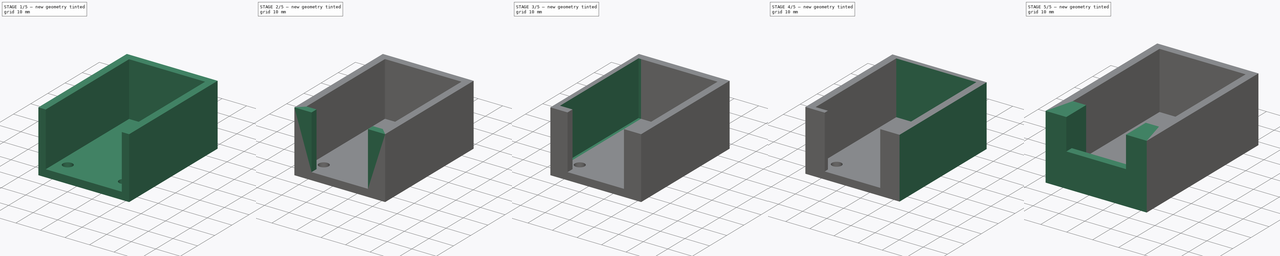
[diagram: build sequence overview — one tinted view per stage of 5, left to right]
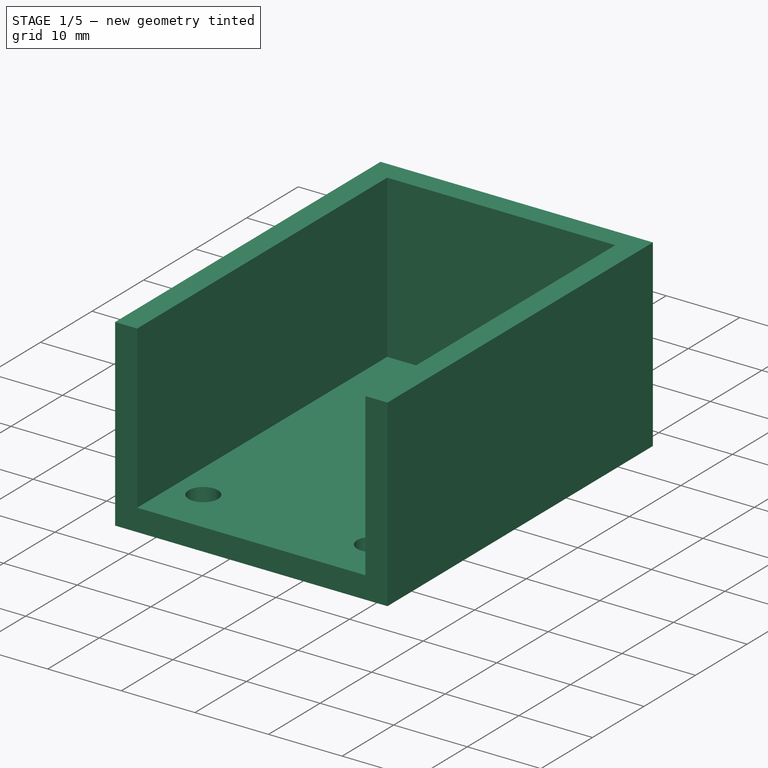
[diagram: stage 1 of 5 — iso view after this stage's code; geometry added in this stage tinted green]
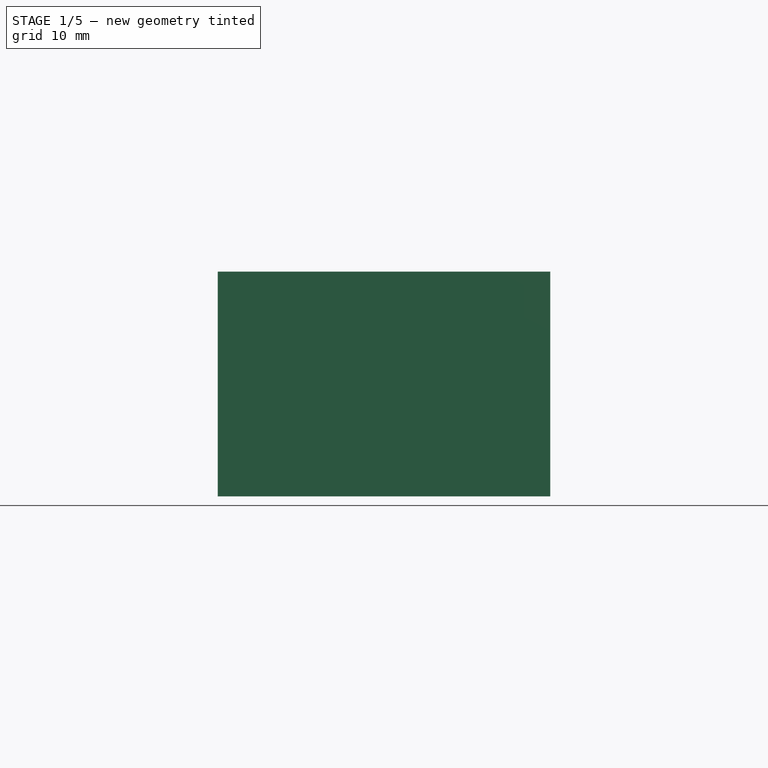
[diagram: stage 1 of 5 — front view after this stage's code; geometry added in this stage tinted green]
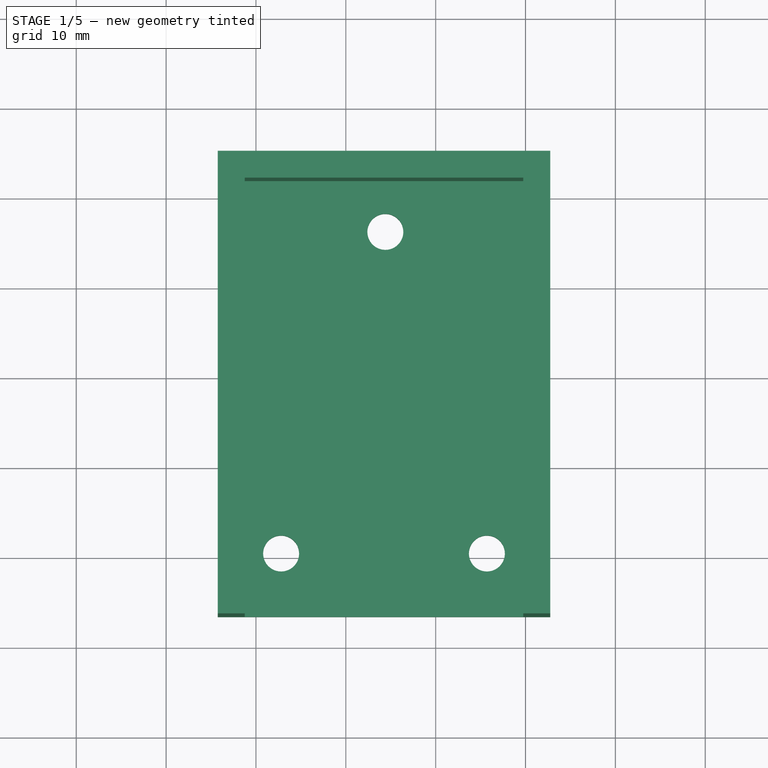
[diagram: stage 1 of 5 — top view after this stage's code; geometry added in this stage tinted green]
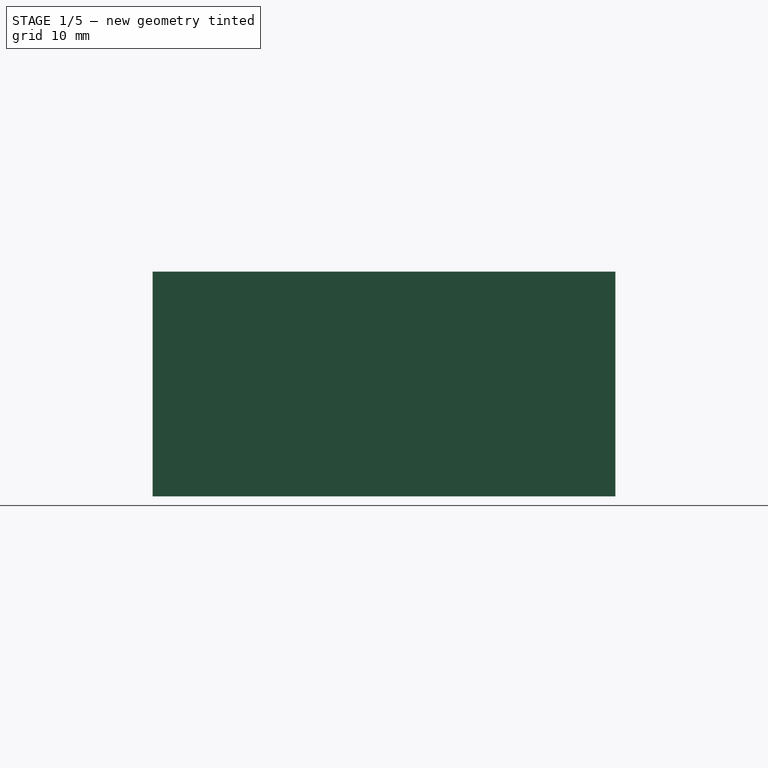
[diagram: stage 1 of 5 — right view after this stage's code; geometry added in this stage tinted green]
FCSTD DOCUMENT  (FreeCAD 0.18.4R)
Label: 12v_stepper_case
License: All rights reserved
LicenseURL: http://en.wikipedia.org/wiki/All_rights_reserved
objects: PartDesign::Pocket×18, App::MeasureDistance×10, PartDesign::Pad×9, Sketcher::SketchObject×7, PartDesign::Body×1
note: 62 computed .brp shape members not serialized (recipe doc carries the construction recipe); baked Part::Feature solids carry a one-line shape summary decoded from their .brp

FEATURE [Sketcher::SketchObject] Sketch
  MapMode = 5
  Support = -> [XY_Plane]
  sketch-geometry (4):
    g0: LineSegment StartX=-34.2498 StartY=24.9311 StartZ=0 EndX=2.75016 EndY=24.9311 EndZ=0
    g1: LineSegment StartX=2.75016 StartY=24.9311 StartZ=0 EndX=2.75016 EndY=-26.5689 EndZ=0
    g2: LineSegment StartX=2.75016 StartY=-26.5689 StartZ=0 EndX=-34.2498 EndY=-26.5689 EndZ=0
    g3: LineSegment StartX=-34.2498 StartY=-26.5689 StartZ=0 EndX=-34.2498 EndY=24.9311 EndZ=0
  constraints (10):
    c: Coincident(g0,g1)
    c: Coincident(g1,g2)
    c: Coincident(g2,g3)
    c: Coincident(g3,g0)
    c: Horizontal(g0)
    c: Horizontal(g2)
    c: Vertical(g1)
    c: Vertical(g3)
    c: DistanceX(g0,g0) = 37
    c: DistanceY(g1,g1) = 51.5
FEATURE [PartDesign::Pad] Pad
  Length = 25
  Length2 = 100
  Profile = -> Sketch
  Type = 0
FEATURE [Sketcher::SketchObject] Sketch001
  ExternalGeometry = -> [Pad]
  MapMode = 5
  Placement = pos=(0,0,25) rot=(0,0,1;0rad)
  Support = -> [Pad]
  sketch-geometry (4):
    g0: LineSegment StartX=-31.2498 StartY=21.9311 StartZ=0 EndX=-0.249835 EndY=21.9311 EndZ=0
    g1: LineSegment StartX=-0.249835 StartY=21.9311 StartZ=0 EndX=-0.249835 EndY=-23.5689 EndZ=0
    g2: LineSegment StartX=-0.249835 StartY=-23.5689 StartZ=0 EndX=-31.2498 EndY=-23.5689 EndZ=0
    g3: LineSegment StartX=-31.2498 StartY=-23.5689 StartZ=0 EndX=-31.2498 EndY=21.9311 EndZ=0
  constraints (12):
    c: Coincident(g0,g1)
    c: Coincident(g1,g2)
    c: Coincident(g2,g3)
    c: Coincident(g3,g0)
    c: Horizontal(g0)
    c: Horizontal(g2)
    c: Vertical(g1)
    c: Vertical(g3)
    c: Distance(g0,g-3) = 3
    c: Distance(g0,g-4) = 3
    c: Distance(g0,g-5) = 3
    c: Distance(g2,g-6) = 3
FEATURE [PartDesign::Pocket] Pocket
  BaseFeature = -> Pad
  Length = 22
  Length2 = 100
  Profile = -> Sketch001
  Type = 0
FEATURE [Sketcher::SketchObject] Sketch002
  ExternalGeometry = -> [Pocket]
  MapMode = 5
  Placement = pos=(0,0,25) rot=(0,0,1;0rad)
  Support = -> [Pocket]
  sketch-geometry (4):
    g0: LineSegment StartX=-31.2498 StartY=-23.5689 StartZ=0 EndX=-0.249835 EndY=-23.5689 EndZ=0
    g1: LineSegment StartX=-0.249835 StartY=-23.5689 StartZ=0 EndX=-0.249835 EndY=-26.5689 EndZ=0
    g2: LineSegment StartX=-0.249835 StartY=-26.5689 StartZ=0 EndX=-31.2498 EndY=-26.5689 EndZ=0
    g3: LineSegment StartX=-31.2498 StartY=-26.5689 StartZ=0 EndX=-31.2498 EndY=-23.5689 EndZ=0
  constraints (11):
    c: Coincident(g0,g1)
    c: Coincident(g1,g2)
    c: Coincident(g2,g3)
    c: Coincident(g3,g0)
    c: Horizontal(g0)
    c: Horizontal(g2)
    c: Vertical(g1)
    c: Vertical(g3)
    c: Distance(g1) = 3
    c: Distance(g0,g-4) = 3
    c: Distance(g2,g-7) = 51.5
FEATURE [PartDesign::Pocket] Pocket001
  BaseFeature = -> Pocket
  Length = 22
  Length2 = 100
  Profile = -> Sketch002
  Refine = true
  Type = 0
FEATURE [Sketcher::SketchObject] Sketch003
  ExternalGeometry = -> [Pocket001]
  MapMode = 5
  Placement = pos=(0,0,3) rot=(0,0,1;0rad)
  Support = -> [Pocket001]
  sketch-geometry (3):
    g0: Circle CenterX=-15.5998 CenterY=16.2811 CenterZ=0 NormalX=0 NormalY=0 NormalZ=1 AngleXU=0 Radius=2
    g1: Circle CenterX=-27.1998 CenterY=-19.5189 CenterZ=0 NormalX=0 NormalY=0 NormalZ=1 AngleXU=0 Radius=2
    g2: Circle CenterX=-4.29984 CenterY=-19.5189 CenterZ=0 NormalX=0 NormalY=0 NormalZ=1 AngleXU=0 Radius=2
  constraints (9):
    c: Radius(g0) = 2
    c: Distance(g0,g-4) = 5.65
    c: Distance(g0,g-3) = 15.65
    c: Radius(g2) = 2
    c: Radius(g1) = 2
    c: Distance(g2,g-5) = 4.05
    c: Distance(g1,g-3) = 4.05
    c: Distance(g1,g-6) = 7.05
    c: Distance(g2,g-6) = 7.05
FEATURE [PartDesign::Pocket] Pocket002
  BaseFeature = -> Pocket001
  Length = 5
  Length2 = 100
  Profile = -> Sketch003
  Type = 0
FEATURE [Sketcher::SketchObject] Sketch004
  ExternalGeometry = -> [Pocket002]
  MapMode = 5
  Placement = pos=(0,0,0) rot=(1,0,0;3.14159rad)
  Support = -> [Pocket002]
  sketch-geometry (3):
    g0: Circle CenterX=-27.1998 CenterY=19.5189 CenterZ=0 NormalX=0 NormalY=0 NormalZ=1 AngleXU=0 Radius=3
    g1: Circle CenterX=-4.29979 CenterY=19.5184 CenterZ=0 NormalX=0 NormalY=0 NormalZ=1 AngleXU=0 Radius=3
    g2: Circle CenterX=-15.5998 CenterY=-16.2811 CenterZ=0 NormalX=0 NormalY=0 NormalZ=1 AngleXU=0 Radius=3
  constraints (3):
    c: Radius(g1) = 3
    c: Radius(g0) = 3
    c: Radius(g2) = 3
FEATURE [PartDesign::Pocket] Pocket003
  BaseFeature = -> Pocket002
  Length = 1
  Length2 = 100
  Profile = -> Sketch004
  Refine = true
  Type = 0
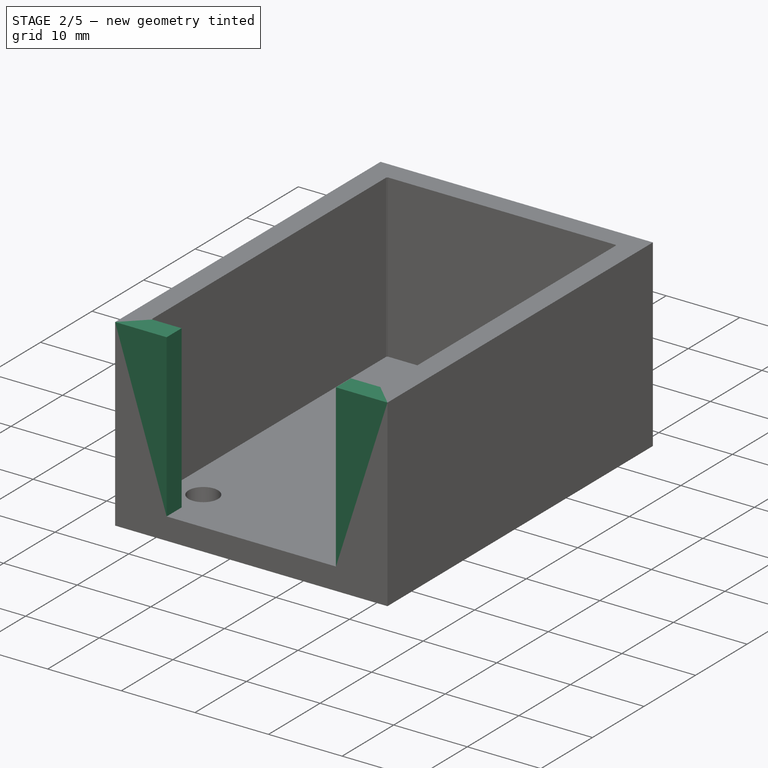
[diagram: stage 2 of 5 — iso view after this stage's code; geometry added in this stage tinted green]
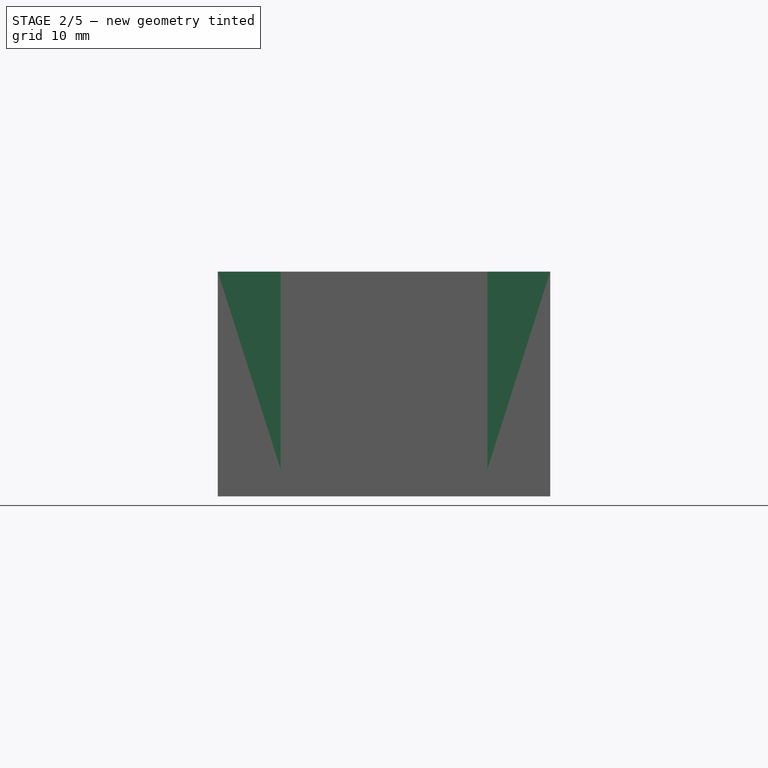
[diagram: stage 2 of 5 — front view after this stage's code; geometry added in this stage tinted green]
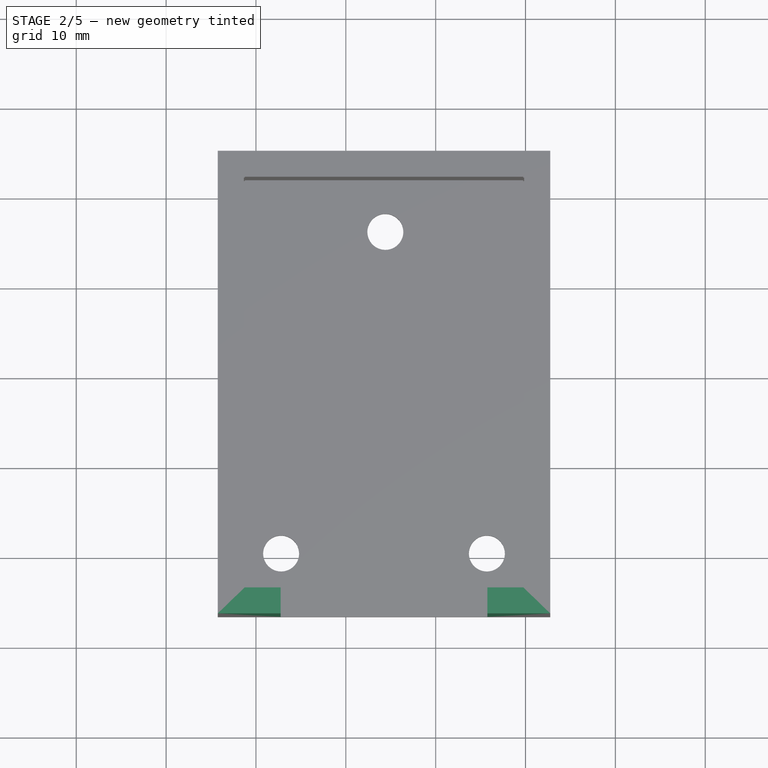
[diagram: stage 2 of 5 — top view after this stage's code; geometry added in this stage tinted green]
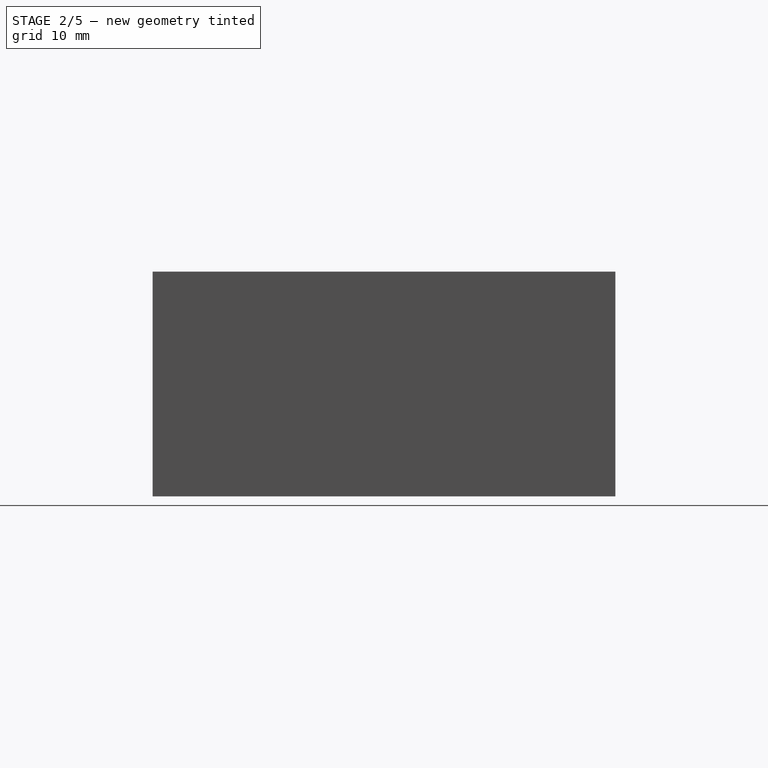
[diagram: stage 2 of 5 — right view after this stage's code; geometry added in this stage tinted green]
FEATURE [Sketcher::SketchObject] Sketch005
  ExternalGeometry = -> [Pocket003]
  MapMode = 5
  Placement = pos=(0,0,3) rot=(0,0,1;0rad)
  Support = -> [Pocket003]
  sketch-geometry (8):
    g0: LineSegment StartX=-31.2498 StartY=-23.5689 StartZ=0 EndX=-27.2498 EndY=-23.5689 EndZ=0
    g1: LineSegment StartX=-27.2498 StartY=-23.5689 StartZ=0 EndX=-27.2498 EndY=-26.5689 EndZ=0
    g2: LineSegment StartX=-27.2498 StartY=-26.5689 StartZ=0 EndX=-31.2498 EndY=-26.5689 EndZ=0
    g3: LineSegment StartX=-31.2498 StartY=-26.5689 StartZ=0 EndX=-31.2498 EndY=-23.5689 EndZ=0
    g4: LineSegment StartX=-0.249835 StartY=-23.5689 StartZ=0 EndX=-4.24984 EndY=-23.5689 EndZ=0
    g5: LineSegment StartX=-4.24984 StartY=-23.5689 StartZ=0 EndX=-4.24984 EndY=-26.5689 EndZ=0
    g6: LineSegment StartX=-4.24984 StartY=-26.5689 StartZ=0 EndX=-0.249835 EndY=-26.5689 EndZ=0
    g7: LineSegment StartX=-0.249835 StartY=-26.5689 StartZ=0 EndX=-0.249835 EndY=-23.5689 EndZ=0
  constraints (24):
    c: Coincident(g0,g1)
    c: Coincident(g1,g2)
    c: Coincident(g2,g3)
    c: Coincident(g3,g0)
    c: Horizontal(g0)
    c: Horizontal(g2)
    c: Vertical(g1)
    c: Vertical(g3)
    c: Coincident(g4,g5)
    c: Coincident(g5,g6)
    c: Coincident(g6,g7)
    c: Coincident(g7,g4)
    c: Horizontal(g4)
    c: Horizontal(g6)
    c: Vertical(g5)
    c: Vertical(g7)
    c: Distance(g5) = 3
    c: Distance(g1) = 3
    c: Distance(g0) = 4
    c: Distance(g4) = 4
    c: Distance(g0,g-3) = 4
    c: Distance(g0,g-4) = 3
    c: Distance(g4,g-5) = 4
    c: Distance(g4,g-4) = 3
FEATURE [PartDesign::Pad] Pad001
  BaseFeature = -> Pocket003
  Length = 22
  Length2 = 100
  Profile = -> Sketch005
  Refine = true
  Type = 0
FEATURE [PartDesign::Pocket] Pocket004
  BaseFeature = -> Pad001
  Length = 0.1
  Length2 = 100
  Profile = -> Pad001 [Face12]
  Type = 0
FEATURE [PartDesign::Pocket] Pocket005
  BaseFeature = -> Pocket004
  Length = 0.1
  Length2 = 100
  Profile = -> Pocket004 [Face17]
  Type = 0
FEATURE [PartDesign::Pocket] Pocket006
  BaseFeature = -> Pocket005
  Length = 0.1
  Length2 = 100
  Profile = -> Pocket005 [Face13]
  Type = 0
FEATURE [PartDesign::Pocket] Pocket007
  BaseFeature = -> Pocket006
  Length = 0.1
  Length2 = 100
  Profile = -> Pocket006 [Face12]
  Type = 0
FEATURE [PartDesign::Pocket] Pocket008
  BaseFeature = -> Pocket007
  Length = 0.1
  Length2 = 100
  Profile = -> Pocket007 [Face11]
  Type = 0
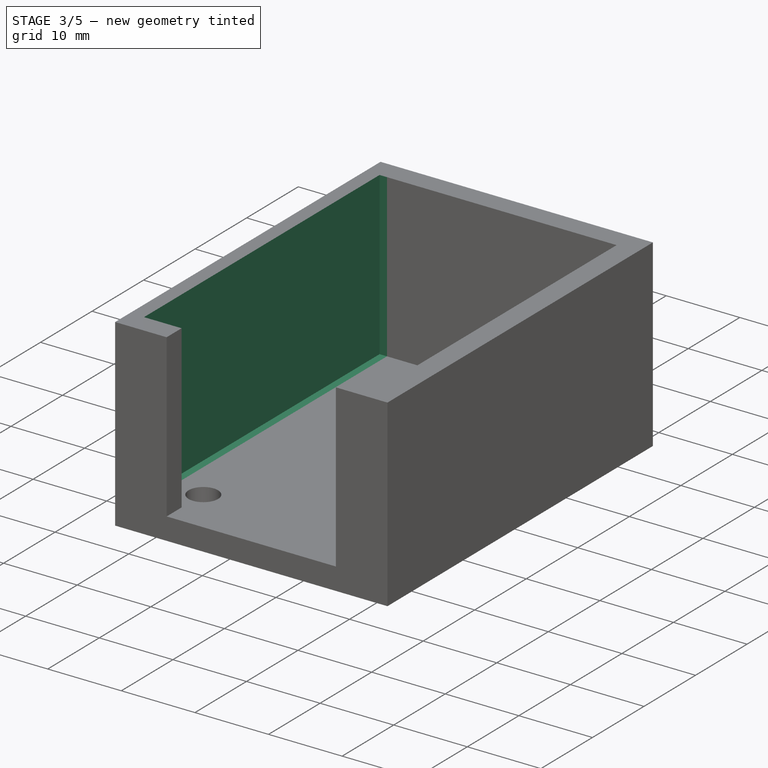
[diagram: stage 3 of 5 — iso view after this stage's code; geometry added in this stage tinted green]
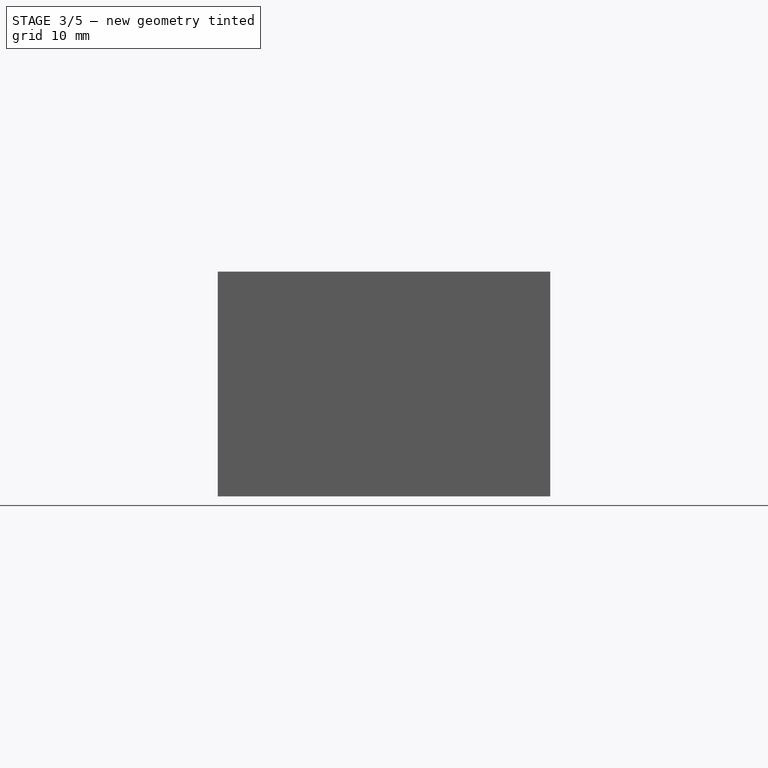
[diagram: stage 3 of 5 — front view after this stage's code; geometry added in this stage tinted green]
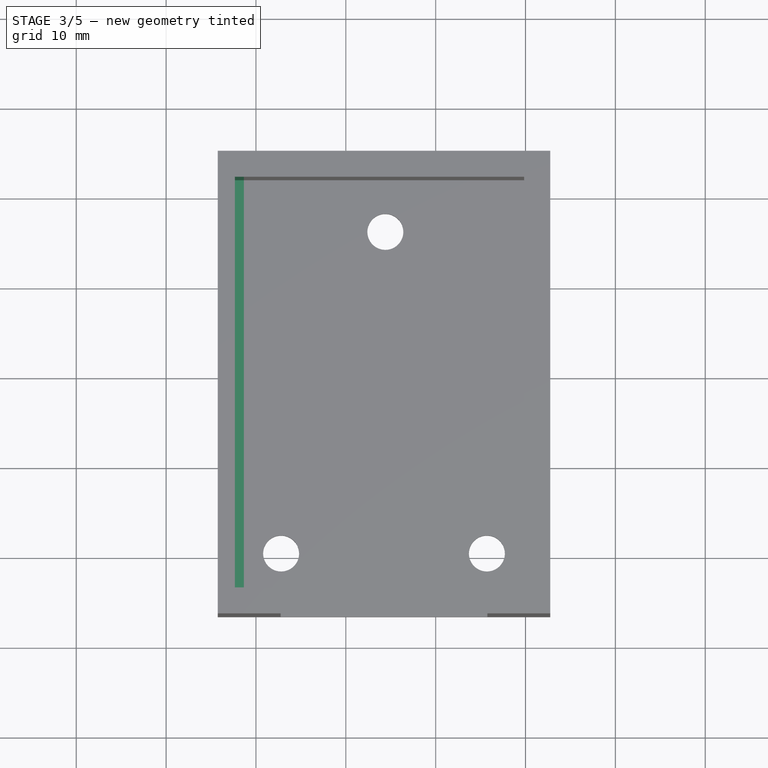
[diagram: stage 3 of 5 — top view after this stage's code; geometry added in this stage tinted green]
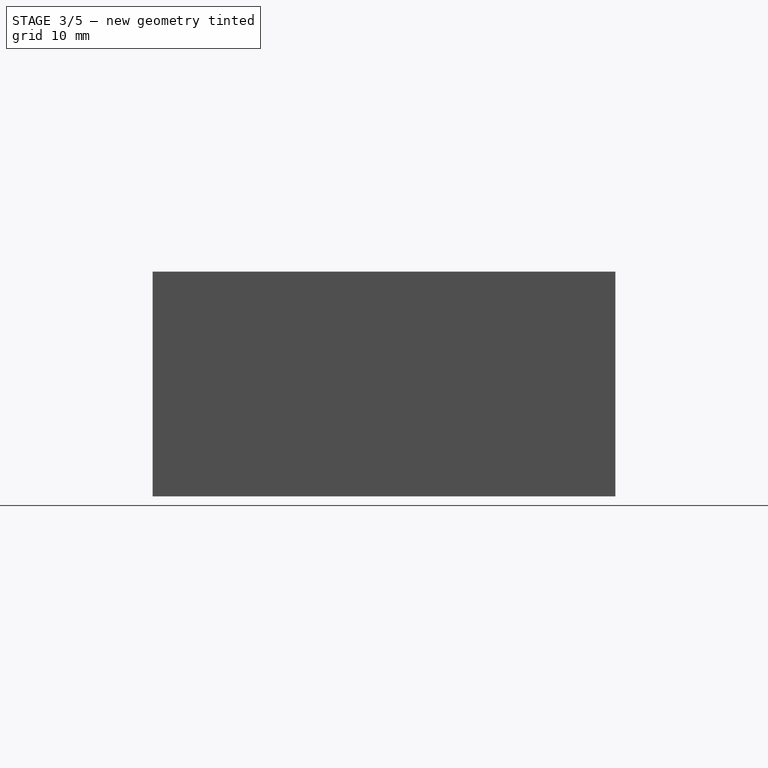
[diagram: stage 3 of 5 — right view after this stage's code; geometry added in this stage tinted green]
FEATURE [PartDesign::Pocket] Pocket009
  BaseFeature = -> Pocket008
  Length = 0.1
  Length2 = 100
  Profile = -> Pocket008 [Face19]
  Type = 0
FEATURE [PartDesign::Pocket] Pocket010
  BaseFeature = -> Pocket009
  Length = 0.1
  Length2 = 100
  Profile = -> Pocket009 [Face15]
  Type = 0
FEATURE [PartDesign::Pocket] Pocket011
  BaseFeature = -> Pocket010
  Length = 0.1
  Length2 = 100
  Profile = -> Pocket010 [Face12]
  Type = 0
FEATURE [PartDesign::Pocket] Pocket012
  BaseFeature = -> Pocket011
  Length = 0.1
  Length2 = 100
  Profile = -> Pocket011 [Face22]
  Refine = true
  Type = 0
FEATURE [PartDesign::Pocket] Pocket013
  BaseFeature = -> Pocket012
  Length = 1
  Length2 = 100
  Profile = -> Pocket012 [Face22]
  Type = 0
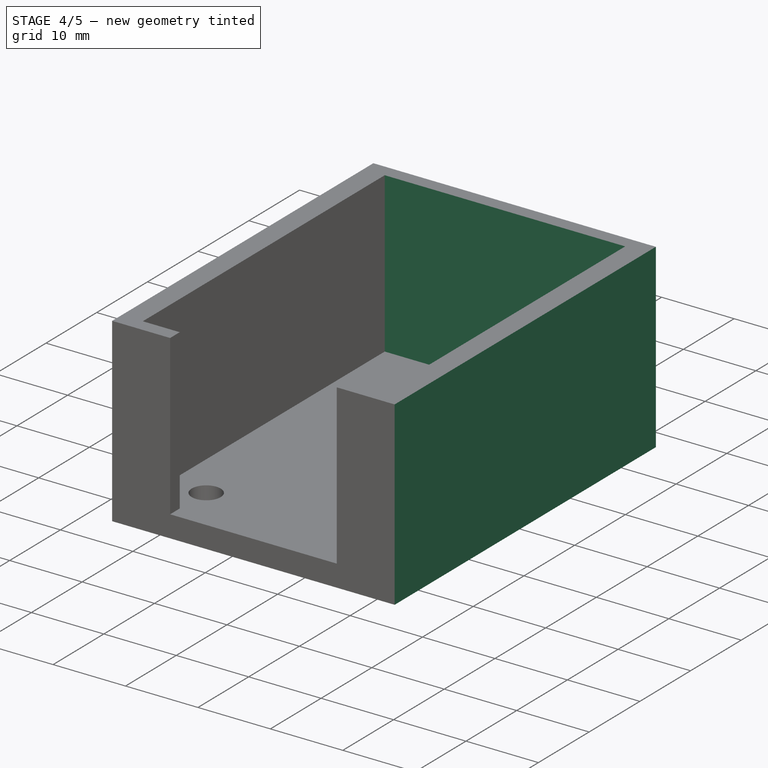
[diagram: stage 4 of 5 — iso view after this stage's code; geometry added in this stage tinted green]
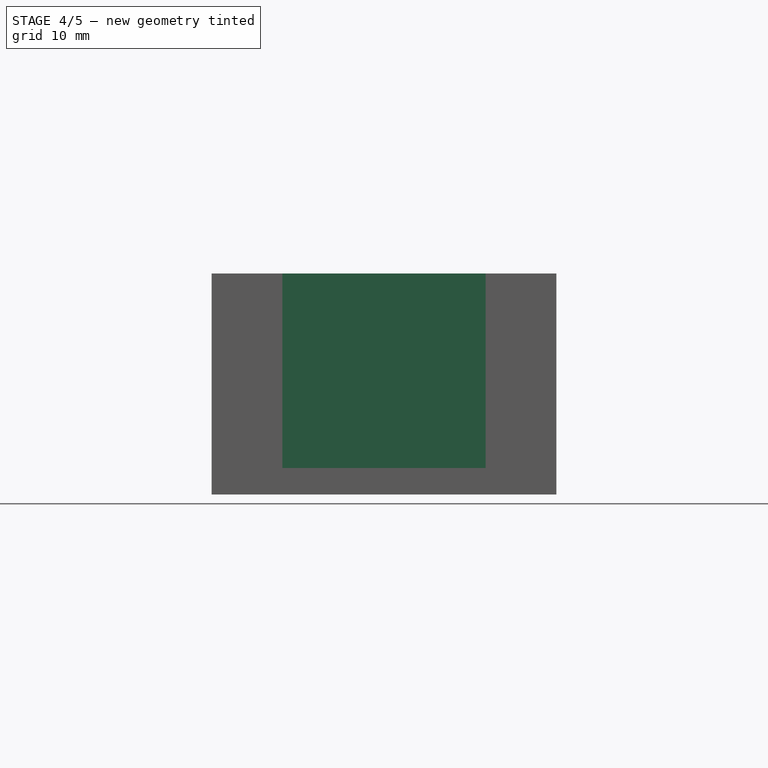
[diagram: stage 4 of 5 — front view after this stage's code; geometry added in this stage tinted green]
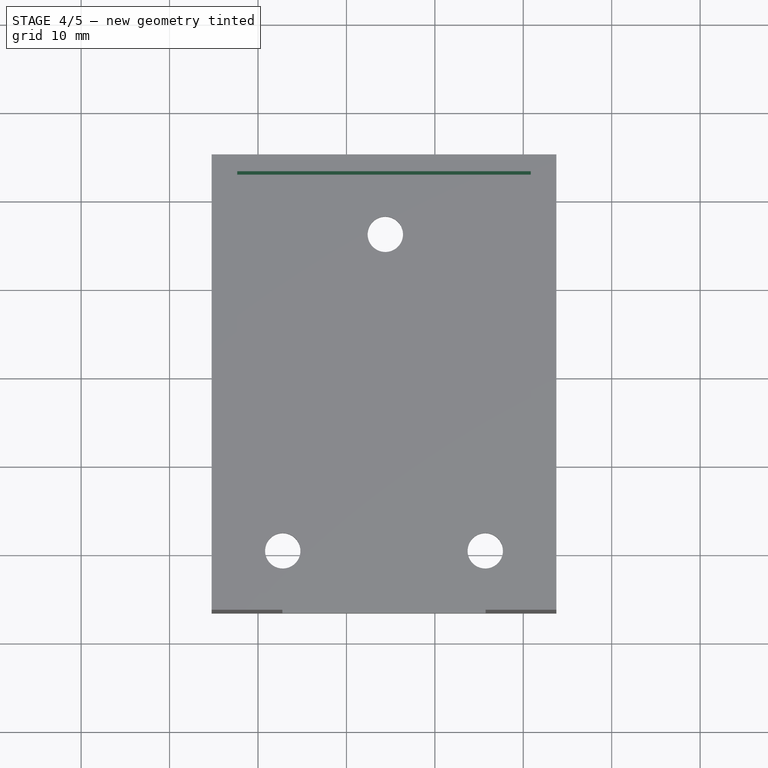
[diagram: stage 4 of 5 — top view after this stage's code; geometry added in this stage tinted green]
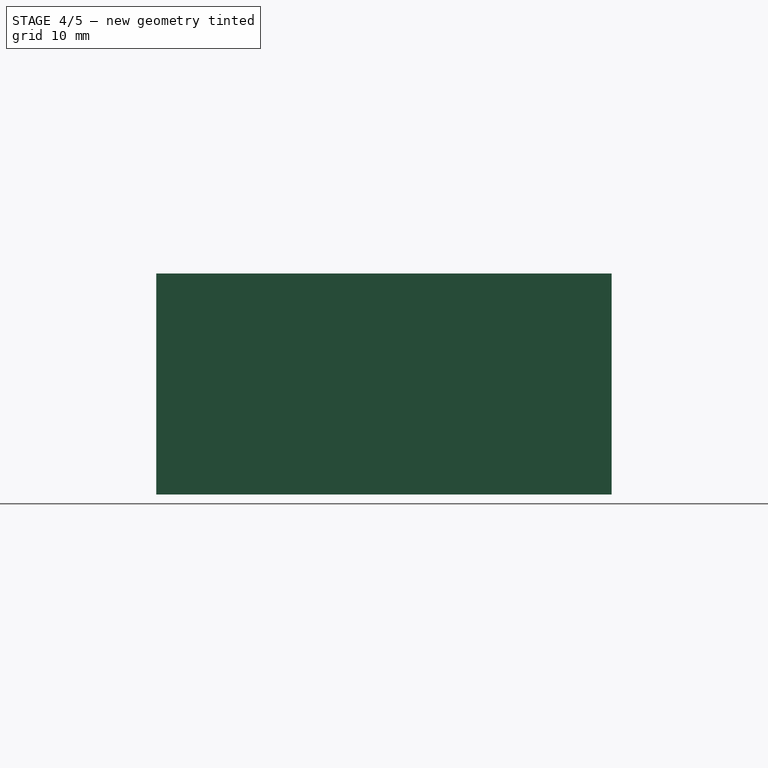
[diagram: stage 4 of 5 — right view after this stage's code; geometry added in this stage tinted green]
FEATURE [PartDesign::Pocket] Pocket014
  BaseFeature = -> Pocket013
  Length = 1
  Length2 = 100
  Profile = -> Pocket013 [Face12]
  Refine = true
  Type = 0
FEATURE [PartDesign::Pocket] Pocket015
  BaseFeature = -> Pocket014
  Length = 1
  Length2 = 100
  Profile = -> Pocket014 [Face22]
  Type = 0
FEATURE [PartDesign::Pocket] Pocket016
  BaseFeature = -> Pocket015
  Length = 1
  Length2 = 100
  Profile = -> Pocket015 [Face17]
  Type = 0
FEATURE [PartDesign::Pocket] Pocket017
  BaseFeature = -> Pocket016
  Length = 1
  Length2 = 100
  Profile = -> Pocket016 [Face11]
  Refine = true
  Type = 0
FEATURE [PartDesign::Pad] Pad002
  BaseFeature = -> Pocket017
  Length = 1
  Length2 = 100
  Profile = -> Pocket017 [Face3]
  Type = 0
FEATURE [PartDesign::Pad] Pad003
  BaseFeature = -> Pad002
  Length = 1
  Length2 = 100
  Profile = -> Pad002 [Face2]
  Refine = true
  Type = 0
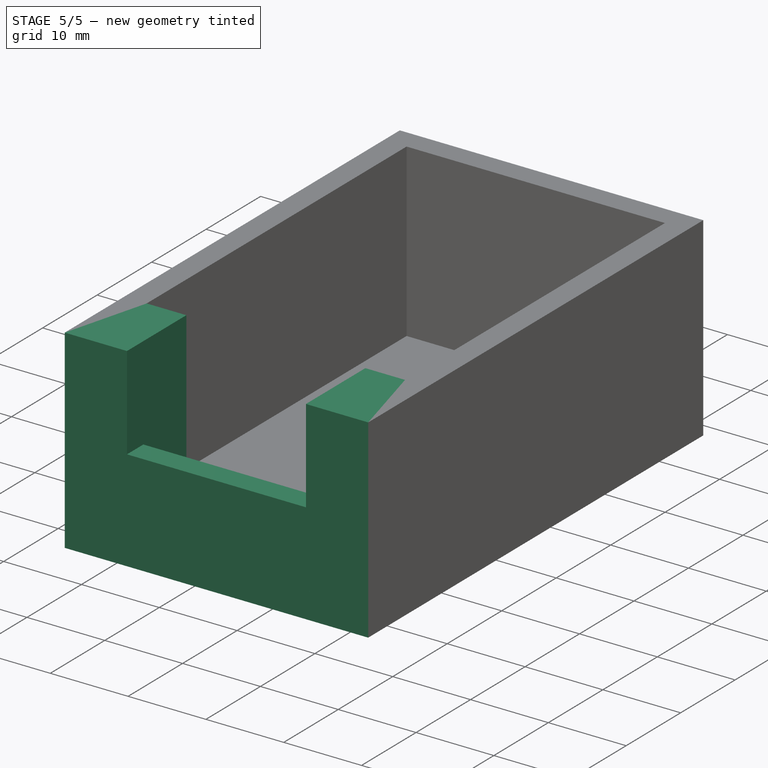
[diagram: stage 5 of 5 — iso view after this stage's code; geometry added in this stage tinted green]
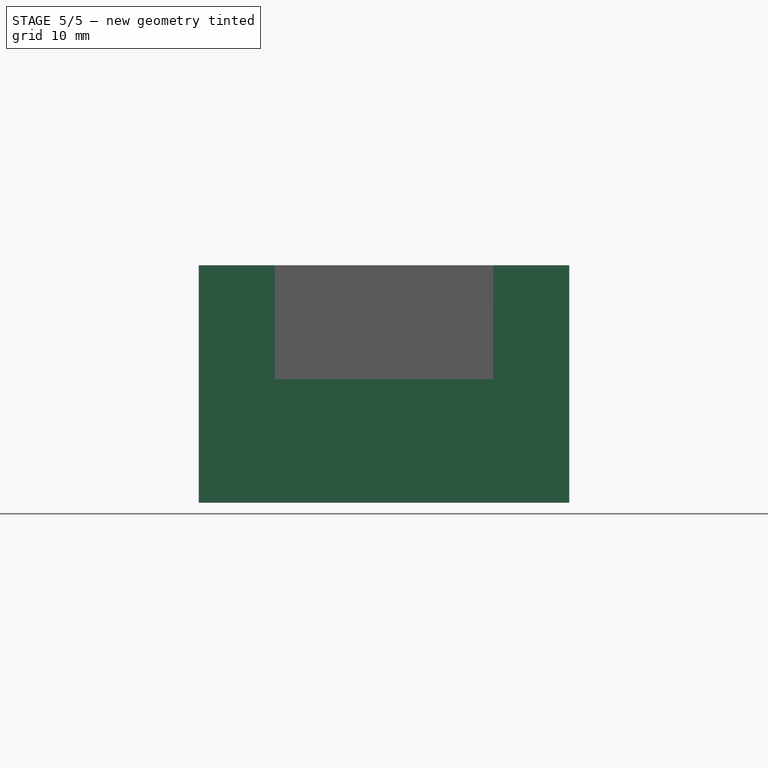
[diagram: stage 5 of 5 — front view after this stage's code; geometry added in this stage tinted green]
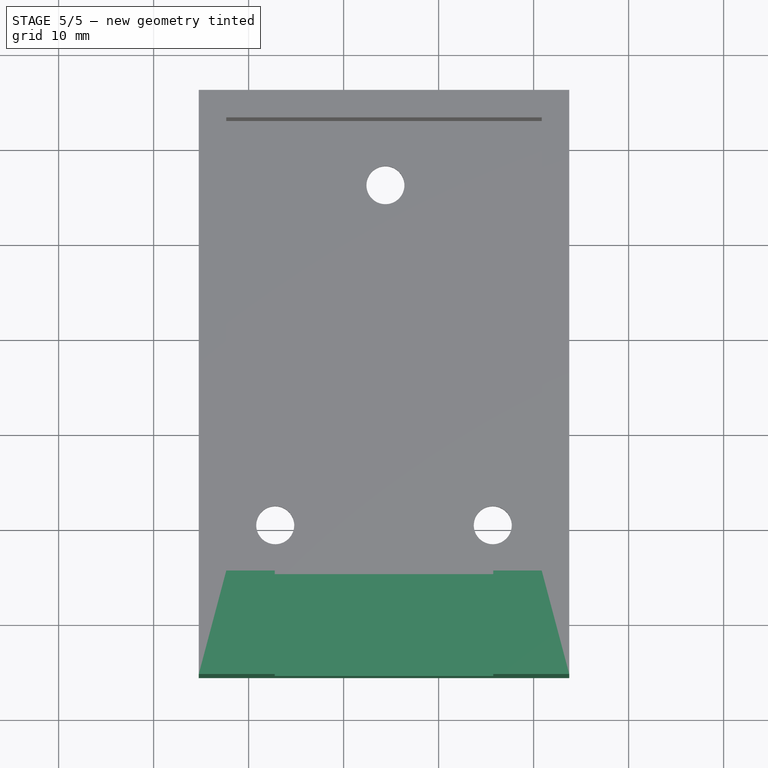
[diagram: stage 5 of 5 — top view after this stage's code; geometry added in this stage tinted green]
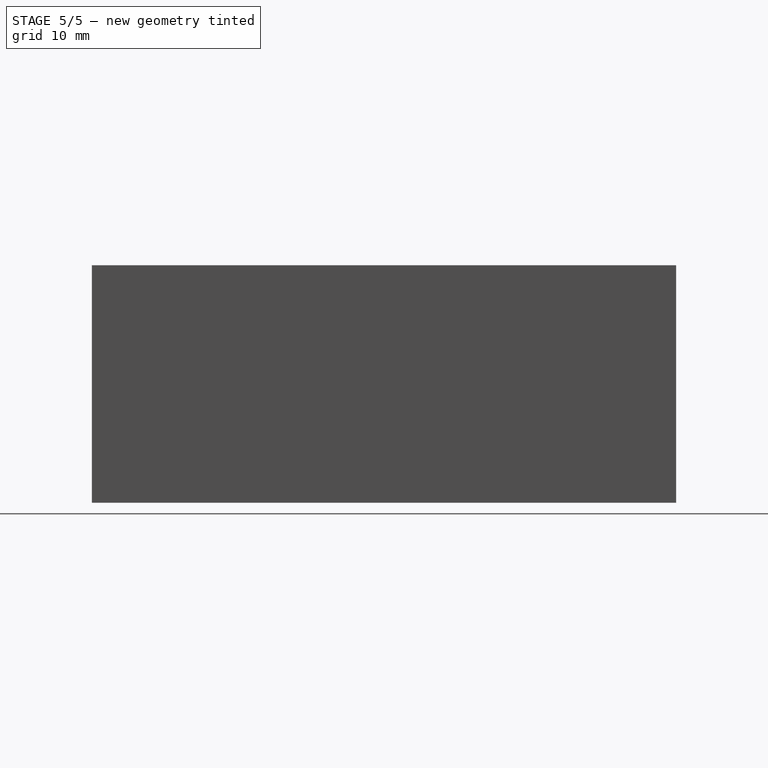
[diagram: stage 5 of 5 — right view after this stage's code; geometry added in this stage tinted green]
FEATURE [PartDesign::Pad] Pad004
  BaseFeature = -> Pad003
  Length = 1
  Length2 = 100
  Profile = -> Pad003 [Face2]
  Type = 0
FEATURE [PartDesign::Pad] Pad005
  BaseFeature = -> Pad004
  Length = 1
  Length2 = 100
  Profile = -> Pad004 [Face2]
  Refine = true
  Type = 0
FEATURE [PartDesign::Pad] Pad006
  BaseFeature = -> Pad005
  Length = 5
  Length2 = 100
  Profile = -> Pad005 [Face1]
  Refine = true
  Type = 0
FEATURE [PartDesign::Pad] Pad007
  BaseFeature = -> Pad006
  Length = 3
  Length2 = 100
  Profile = -> Pad006 [Face3]
  Refine = true
  Type = 0
FEATURE [Sketcher::SketchObject] Sketch006
  ExternalGeometry = -> [Pad007]
  MapMode = 5
  Placement = pos=(0,0,3) rot=(0,0,1;0rad)
  Support = -> [Pad007]
  sketch-geometry (4):
    g0: LineSegment StartX=-27.2498 StartY=-32.5689 StartZ=0 EndX=-4.24984 EndY=-32.5689 EndZ=0
    g1: LineSegment StartX=-4.24984 StartY=-32.5689 StartZ=0 EndX=-4.24984 EndY=-35.5689 EndZ=0
    g2: LineSegment StartX=-4.24984 StartY=-35.5689 StartZ=0 EndX=-27.2498 EndY=-35.5689 EndZ=0
    g3: LineSegment StartX=-27.2498 StartY=-35.5689 StartZ=0 EndX=-27.2498 EndY=-32.5689 EndZ=0
  constraints (12):
    c: Coincident(g0,g1)
    c: Coincident(g1,g2)
    c: Coincident(g2,g3)
    c: Coincident(g3,g0)
    c: Horizontal(g0)
    c: Horizontal(g2)
    c: Vertical(g1)
    c: Vertical(g3)
    c: Distance(g1) = 3
    c: Distance(g0,g-5) = 23
    c: Distance(g0,g-3) = 3
    c: Distance(g0,g-4) = 23
FEATURE [PartDesign::Pad] Pad008
  BaseFeature = -> Pad007
  Length = 10
  Length2 = 100
  Profile = -> Sketch006
  Refine = true
  Type = 0
FEATURE [PartDesign::Body] Body
  Group = -> [Sketch,Pad,Sketch001,Pocket,Sketch002,Pocket001,Sketch003,Pocket002,Sketch004,Pocket003,Sketch005,Pad001,Pocket004,Pocket005,Pocket006,Pocket007,Pocket008,Pocket009,Pocket010,Pocket011,Pocket012,Pocket013,Pocket014,Pocket015,Pocket016,Pocket017,Pad002,Pad003,Pad004,Pad005,Pad006,Pad007,Sketch006,Pad008]
  Origin = -> Origin
  Tip = -> Pad008
FEATURE [App::MeasureDistance] Distance  label="Distance: 47.70 mm"
  Distance = 47.6959
  P1 = (0.850165,23.027,25)
  P2 = (0.818131,-24.6689,25)
FEATURE [App::MeasureDistance] Distance001  label="Distance: 10.82 mm"
  Distance = 10.8223
  P1 = (-4.24984,-24.7465,25)
  P2 = (-4.24984,-35.5689,25)
FEATURE [App::MeasureDistance] Distance002  label="Distance: 7.87 mm"
  Distance = 7.8726
  P1 = (-4.28576,-24.6966,3)
  P2 = (-4.30928,-32.5689,3.06433)
FEATURE [App::MeasureDistance] Distance003  label="Distance: 10.00 mm"
  Distance = 10.0001
  P1 = (-4.33259,-32.5689,13)
  P2 = (-4.33802,-32.5339,3)
FEATURE [App::MeasureDistance] Distance004  label="Distance: 39.00 mm"
  Distance = 38.9992
  P1 = (-35.2498,25.9311,25)
  P2 = (3.7494,25.9311,25)
FEATURE [App::MeasureDistance] Distance005  label="Distance: 61.50 mm"
  Distance = 61.5
  P1 = (-35.2498,25.9311,25)
  P2 = (-35.2477,-35.5689,25)
FEATURE [App::MeasureDistance] Distance006  label="Distance: 22.96 mm"
  Distance = 22.9567
  P1 = (-27.2066,-35.5689,13)
  P2 = (-4.24984,-35.5689,13)
FEATURE [App::MeasureDistance] Distance007  label="Distance: 25.00 mm"
  Distance = 25
  P1 = (-35.2498,-35.5689,25)
  P2 = (-35.2498,-35.5689,6e-16)
FEATURE [App::MeasureDistance] Distance008  label="Distance: 8.00 mm"
  Distance = 8
  P1 = (-4.24984,-35.5689,25)
  P2 = (3.75016,-35.5689,25)
FEATURE [App::MeasureDistance] Distance009  label="Distance: 33.20 mm"
  Distance = 33.2001
  P1 = (-32.3498,23.0311,25)
  P2 = (0.850165,22.9598,25)
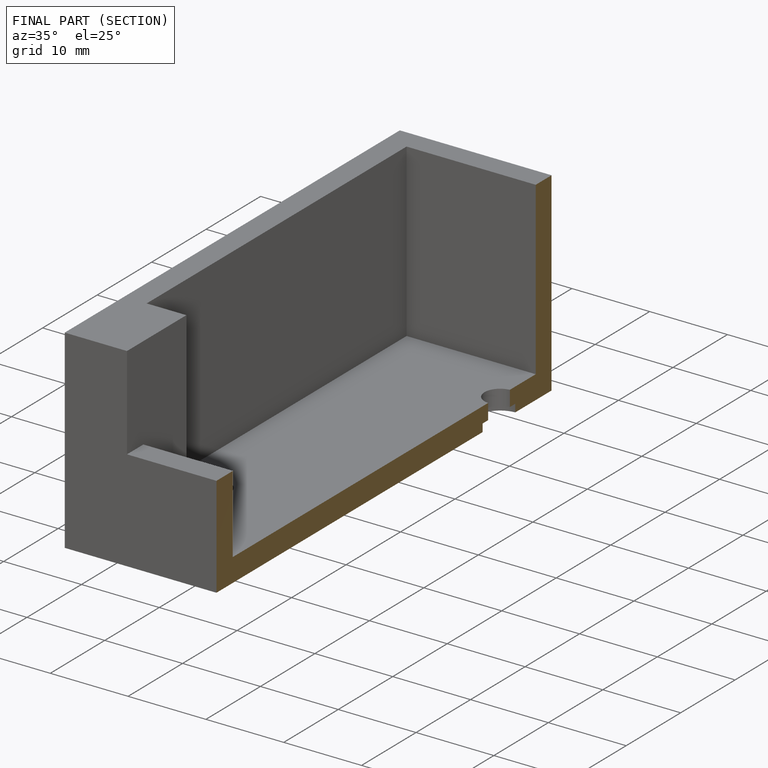
[diagram: finished part — half-section view (interior)]
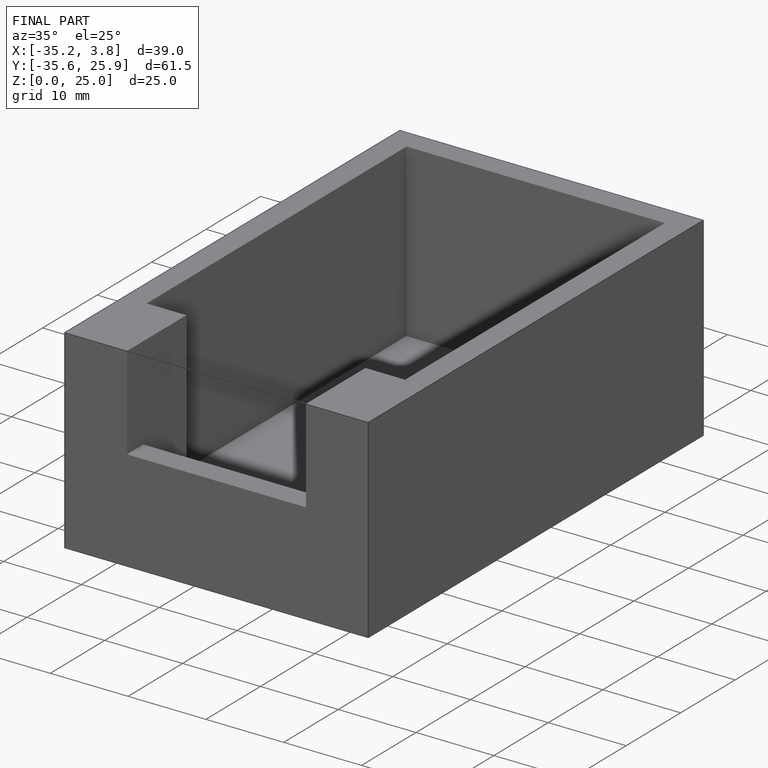
[diagram: finished part — iso view with bounding-box wireframe]
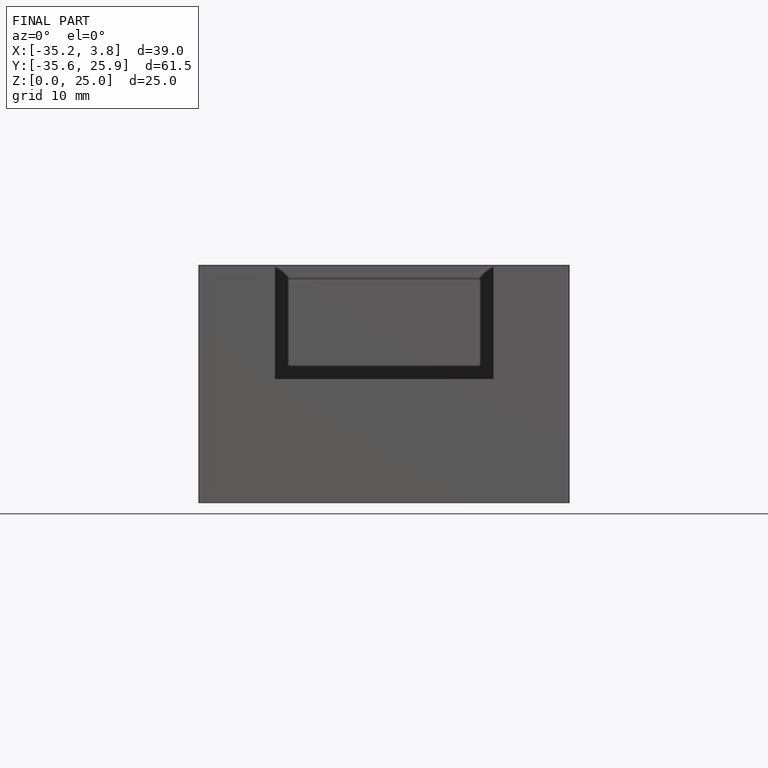
[diagram: finished part — front view with bounding-box wireframe]
